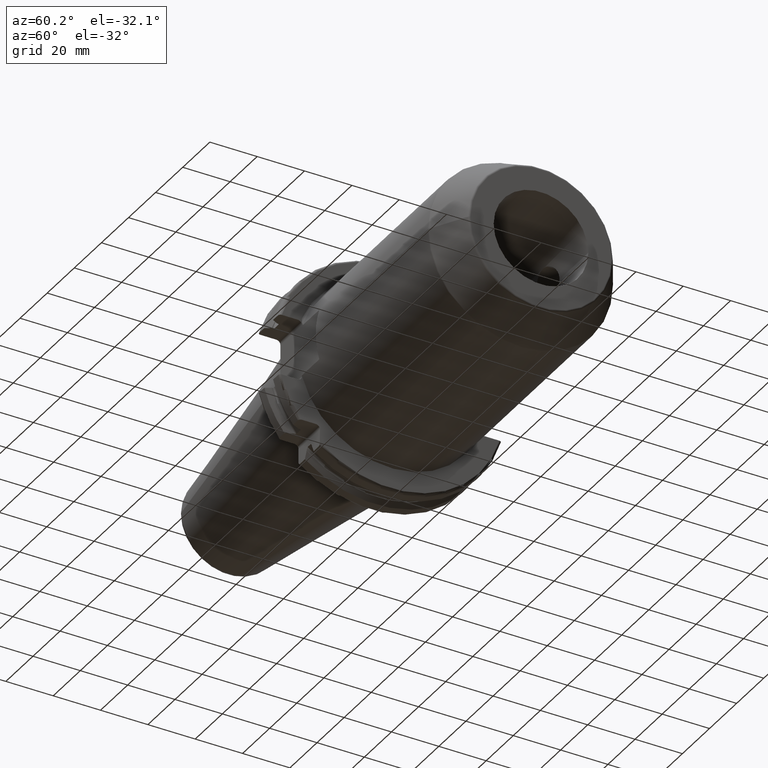
[diagram: clean part render]
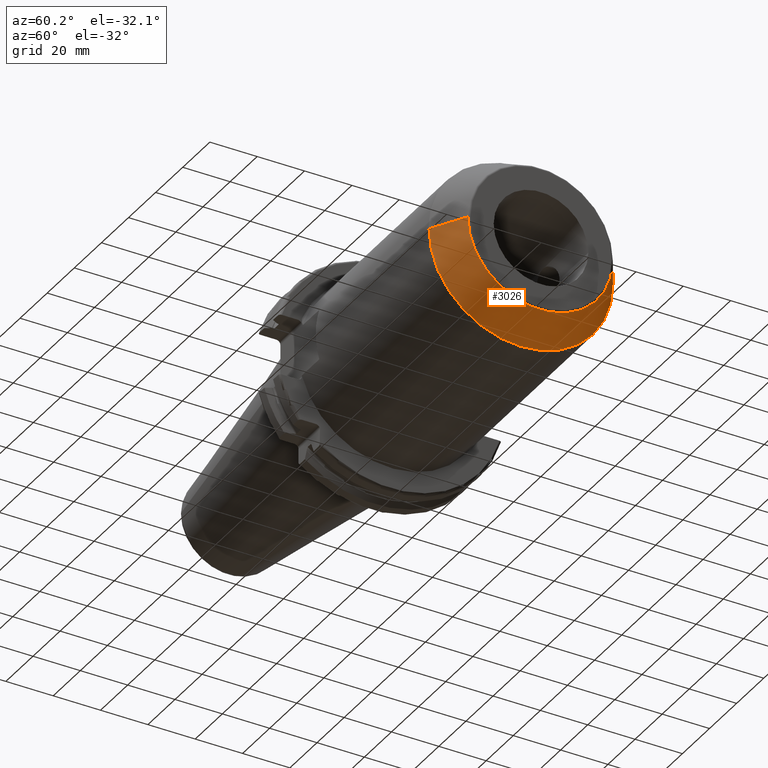
[diagram: same view with one face highlighted and labeled with its STEP entity id]
A machine part, auxiliary view. The second image highlights one B-rep face of the part: STEP entity #3026.
In plain terms, the highlighted conical surface has half-angle 30 deg.
Its self-contained STEP definition (entity closure, byte-faithful):
#1190=CARTESIAN_POINT('',(1.152320508076E2,0.E0,0.E0));
#1191=DIRECTION('',(-1.E0,0.E0,0.E0));
#1192=DIRECTION('',(0.E0,1.E0,0.E0));
#1193=AXIS2_PLACEMENT_3D('',#1190,#1191,#1192);
#1195=DIRECTION('',(-8.660254037844E-1,-5.E-1,1.231181988612E-13));
#1196=VECTOR('',#1195,1.647520861407E1);
#1197=CARTESIAN_POINT('',(1.295E2,-3.062842109675E1,5.136833928979E-13));
#1198=LINE('',#1197,#1196);
#1199=CARTESIAN_POINT('',(1.295E2,0.E0,0.E0));
#1200=DIRECTION('',(-1.E0,0.E0,0.E0));
#1201=DIRECTION('',(0.E0,1.E0,0.E0));
#1202=AXIS2_PLACEMENT_3D('',#1199,#1200,#1201);
#1204=DIRECTION('',(-8.660254037844E-1,5.E-1,-1.228496371269E-13));
#1205=VECTOR('',#1204,1.647520861407E1);
#1206=CARTESIAN_POINT('',(1.295E2,3.062842109675E1,-5.214281727641E-13));
#1207=LINE('',#1206,#1205);
#1815=CARTESIAN_POINT('',(1.152320508076E2,3.886602540378E1,0.E0));
#1816=CARTESIAN_POINT('',(1.152320508076E2,-3.886602540378E1,0.E0));
#1817=VERTEX_POINT('',#1815);
#1818=VERTEX_POINT('',#1816);
#1819=CARTESIAN_POINT('',(1.295E2,3.062842109675E1,0.E0));
#1820=CARTESIAN_POINT('',(1.295E2,-3.062842109675E1,0.E0));
#1821=VERTEX_POINT('',#1819);
#1822=VERTEX_POINT('',#1820);
#3014=CARTESIAN_POINT('',(1.223660254038E2,0.E0,0.E0));
#3015=DIRECTION('',(-1.E0,0.E0,0.E0));
#3016=DIRECTION('',(0.E0,1.E0,0.E0));
#3017=AXIS2_PLACEMENT_3D('',#3014,#3015,#3016);
#3018=CONICAL_SURFACE('',#3017,3.474722325027E1,3.E1);
#3019=ORIENTED_EDGE('',*,*,#2979,.T.);
#3020=ORIENTED_EDGE('',*,*,#3009,.F.);
#3022=ORIENTED_EDGE('',*,*,#3021,.F.);
#3023=ORIENTED_EDGE('',*,*,#3005,.T.);
#3024=EDGE_LOOP('',(#3019,#3020,#3022,#3023));
#3025=FACE_OUTER_BOUND('',#3024,.F.);
#3026=ADVANCED_FACE('',(#3025),#3018,.T.);
#1194=CIRCLE('',#1193,3.886602540378E1);
#1203=CIRCLE('',#1202,3.062842109675E1);
#2979=EDGE_CURVE('',#1817,#1818,#1194,.T.);
#3005=EDGE_CURVE('',#1821,#1817,#1207,.T.);
#3009=EDGE_CURVE('',#1822,#1818,#1198,.T.);
#3021=EDGE_CURVE('',#1821,#1822,#1203,.T.);